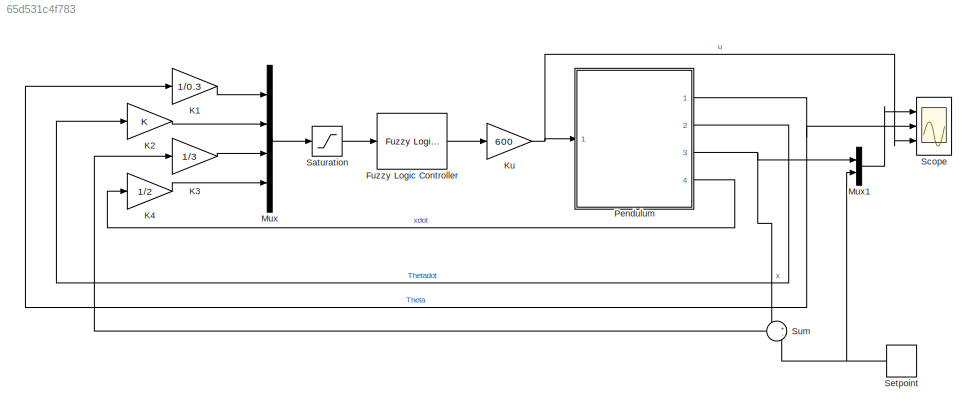
MODEL slx_65d531c4f783
KIND model
CONFIG AbsTol = auto
CONFIG EnableMultiTasking = off
CONFIG FixedStep = 0.01
CONFIG MaxStep = auto
CONFIG MinStep = auto
CONFIG RelTol = 1e-3
CONFIG SampleTimeConstraint = Unconstrained
CONFIG Solver = ode4
CONFIG SolverName = ode4
CONFIG StartTime = 0.0
CONFIG StopTime = 20
BLOCK [Reference] Fuzzy Logic Controller  REF=fuzblock/Fuzzy Logic   (lib defined in mdl_858b3b3e7478)
Controller
  Ports = [1, 1]
  SourceBlock = fuzblock/Fuzzy Logic \nController
  SourceProductBaseCode = FL
  SourceProductName = Fuzzy Logic Toolbox
  SourceType = Fuzzy Inference System
BLOCK [Gain] K1
  Gain = 1/0.3
  OutDataTypeStr = Inherit: Inherit via internal rule
  ParamDataTypeStr = Inherit: Inherit via internal rule
  SaturateOnIntegerOverflow = off
BLOCK [Gain] K2
  OutDataTypeStr = Inherit: Inherit via internal rule
  ParamDataTypeStr = Inherit: Inherit via internal rule
  SaturateOnIntegerOverflow = off
BLOCK [Gain] K3
  Gain = 1/3
  OutDataTypeStr = Inherit: Inherit via internal rule
  ParamDataTypeStr = Inherit: Inherit via internal rule
  SaturateOnIntegerOverflow = off
BLOCK [Gain] K4
  Gain = 1/2
  OutDataTypeStr = Inherit: Inherit via internal rule
  ParamDataTypeStr = Inherit: Inherit via internal rule
  SaturateOnIntegerOverflow = off
BLOCK [Gain] Ku
  Gain = 600
  OutDataTypeStr = Inherit: Inherit via internal rule
  ParamDataTypeStr = Inherit: Inherit via internal rule
  SaturateOnIntegerOverflow = off
BLOCK [Mux] Mux
  DisplayOption = bar
  Ports = [4, 1]
BLOCK [Mux] Mux1
  DisplayOption = bar
  Inputs = 2
  Ports = [2, 1]
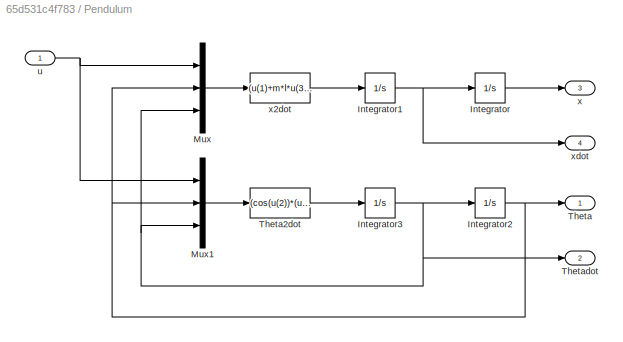
BLOCK [SubSystem] Pendulum
  Ports = [1, 4]
  RequestExecContextInheritance = off
  Variant = off
BLOCK [Integrator] Pendulum/Integrator
  InitialCondition = x0
  Ports = [1, 1]
BLOCK [Integrator] Pendulum/Integrator1
  InitialCondition = xdot0
  Ports = [1, 1]
BLOCK [Integrator] Pendulum/Integrator2
  InitialCondition = Theta0
  Ports = [1, 1]
BLOCK [Integrator] Pendulum/Integrator3
  InitialCondition = Thetadot0
  Ports = [1, 1]
BLOCK [Mux] Pendulum/Mux
  DisplayOption = bar
  Inputs = 3
  Ports = [3, 1]
BLOCK [Mux] Pendulum/Mux1
  DisplayOption = bar
  Inputs = 3
  Ports = [3, 1]
BLOCK [Outport] Pendulum/Theta
  IconDisplay = Port number
BLOCK [Fcn] Pendulum/Theta2dot
  Expr = (cos(u(2))*(u(1)+m*l*u(3)*u(3)*sin(u(1)))-(H+m)*(g*sin(u(2))))/(m*l*cos(u(2))*cos(u(2))-(H+m)*l)
BLOCK [Outport] Pendulum/Thetadot
  IconDisplay = Port number
  Port = 2
BLOCK [Inport] Pendulum/u
  IconDisplay = Port number
BLOCK [Outport] Pendulum/x
  IconDisplay = Port number
  Port = 3
BLOCK [Fcn] Pendulum/x2dot
  Expr = (u(1)+m*l*u(3)*u(3)*sin(u(2))-m*g*sin(u(2))*cos(u(2)))/((H+m)-m*cos(u(2))*cos(u(2)))
BLOCK [Outport] Pendulum/xdot
  IconDisplay = Port number
  Port = 4
BLOCK [Saturate] Saturation
  InputPortMap = u0
  LowerLimit = -1
  Ports = [1, 1]
  UpperLimit = 1
BLOCK [Scope] Scope
  NumInputPorts = 3
  Ports = [3]
  ScopeSpecificationString = Simulink.scopes.TimeScopeBlockCfg('CurrentConfiguration', extmgr.ConfigurationSet(extmgr.Configuration('Core','General UI',true,'FigureColor',[1 1 1]),extmgr.Configuration('Core','Source UI',true),extmgr.Configuration('Sources','WiredSimulink',true),extmgr.Configuration('Visuals','Time Domain',true,'SerializedDisplays',{struct('MinYLimReal','-0.31854','MaxYLimReal','1.23748','YLabelReal','','MinYL...<+3267ch>
BLOCK [DiscretePulseGenerator] Setpoint
  Period = 20
  Ports = [0, 1]
  PulseType = Time based
  PulseWidth = 50
BLOCK [Sum] Sum
  IconShape = round
  InputSameDT = off
  Inputs = +-
  OutDataTypeStr = Inherit: Inherit via internal rule
  Ports = [2, 1]
  SaturateOnIntegerOverflow = off
LINE Fuzzy Logic Controller:1 -> Ku:1
LINE K1:1 -> Mux:1
LINE K2:1 -> Mux:2
LINE K3:1 -> Mux:3
LINE K4:1 -> Mux:4
NET Ku:1 -> Pendulum:1, Scope:3
LINE Mux1:1 -> Scope:1
LINE Mux:1 -> Saturation:1
NET Pendulum/Integrator1:1 -> Pendulum/Integrator:1, Pendulum/xdot:1
NET Pendulum/Integrator2:1 -> Pendulum/Mux1:2, Pendulum/Mux:2, Pendulum/Theta:1
NET Pendulum/Integrator3:1 -> Pendulum/Integrator2:1, Pendulum/Mux1:3, Pendulum/Mux:3, Pendulum/Thetadot:1
LINE Pendulum/Integrator:1 -> Pendulum/x:1
LINE Pendulum/Mux1:1 -> Pendulum/Theta2dot:1
LINE Pendulum/Mux:1 -> Pendulum/x2dot:1
LINE Pendulum/Theta2dot:1 -> Pendulum/Integrator3:1
NET Pendulum/u:1 -> Pendulum/Mux1:1, Pendulum/Mux:1
LINE Pendulum/x2dot:1 -> Pendulum/Integrator1:1
NET Pendulum:1 -> K1:1, Scope:2
LINE Pendulum:2 -> K2:1
NET Pendulum:3 -> Mux1:1, Sum:1
LINE Pendulum:4 -> K4:1
LINE Saturation:1 -> Fuzzy Logic Controller:1
NET Setpoint:1 -> Mux1:2, Sum:2
LINE Sum:1 -> K3:1
note: NET lines group one-source signal fan-out (src -> all destinations, sorted); 1:1 wires keep LINE
